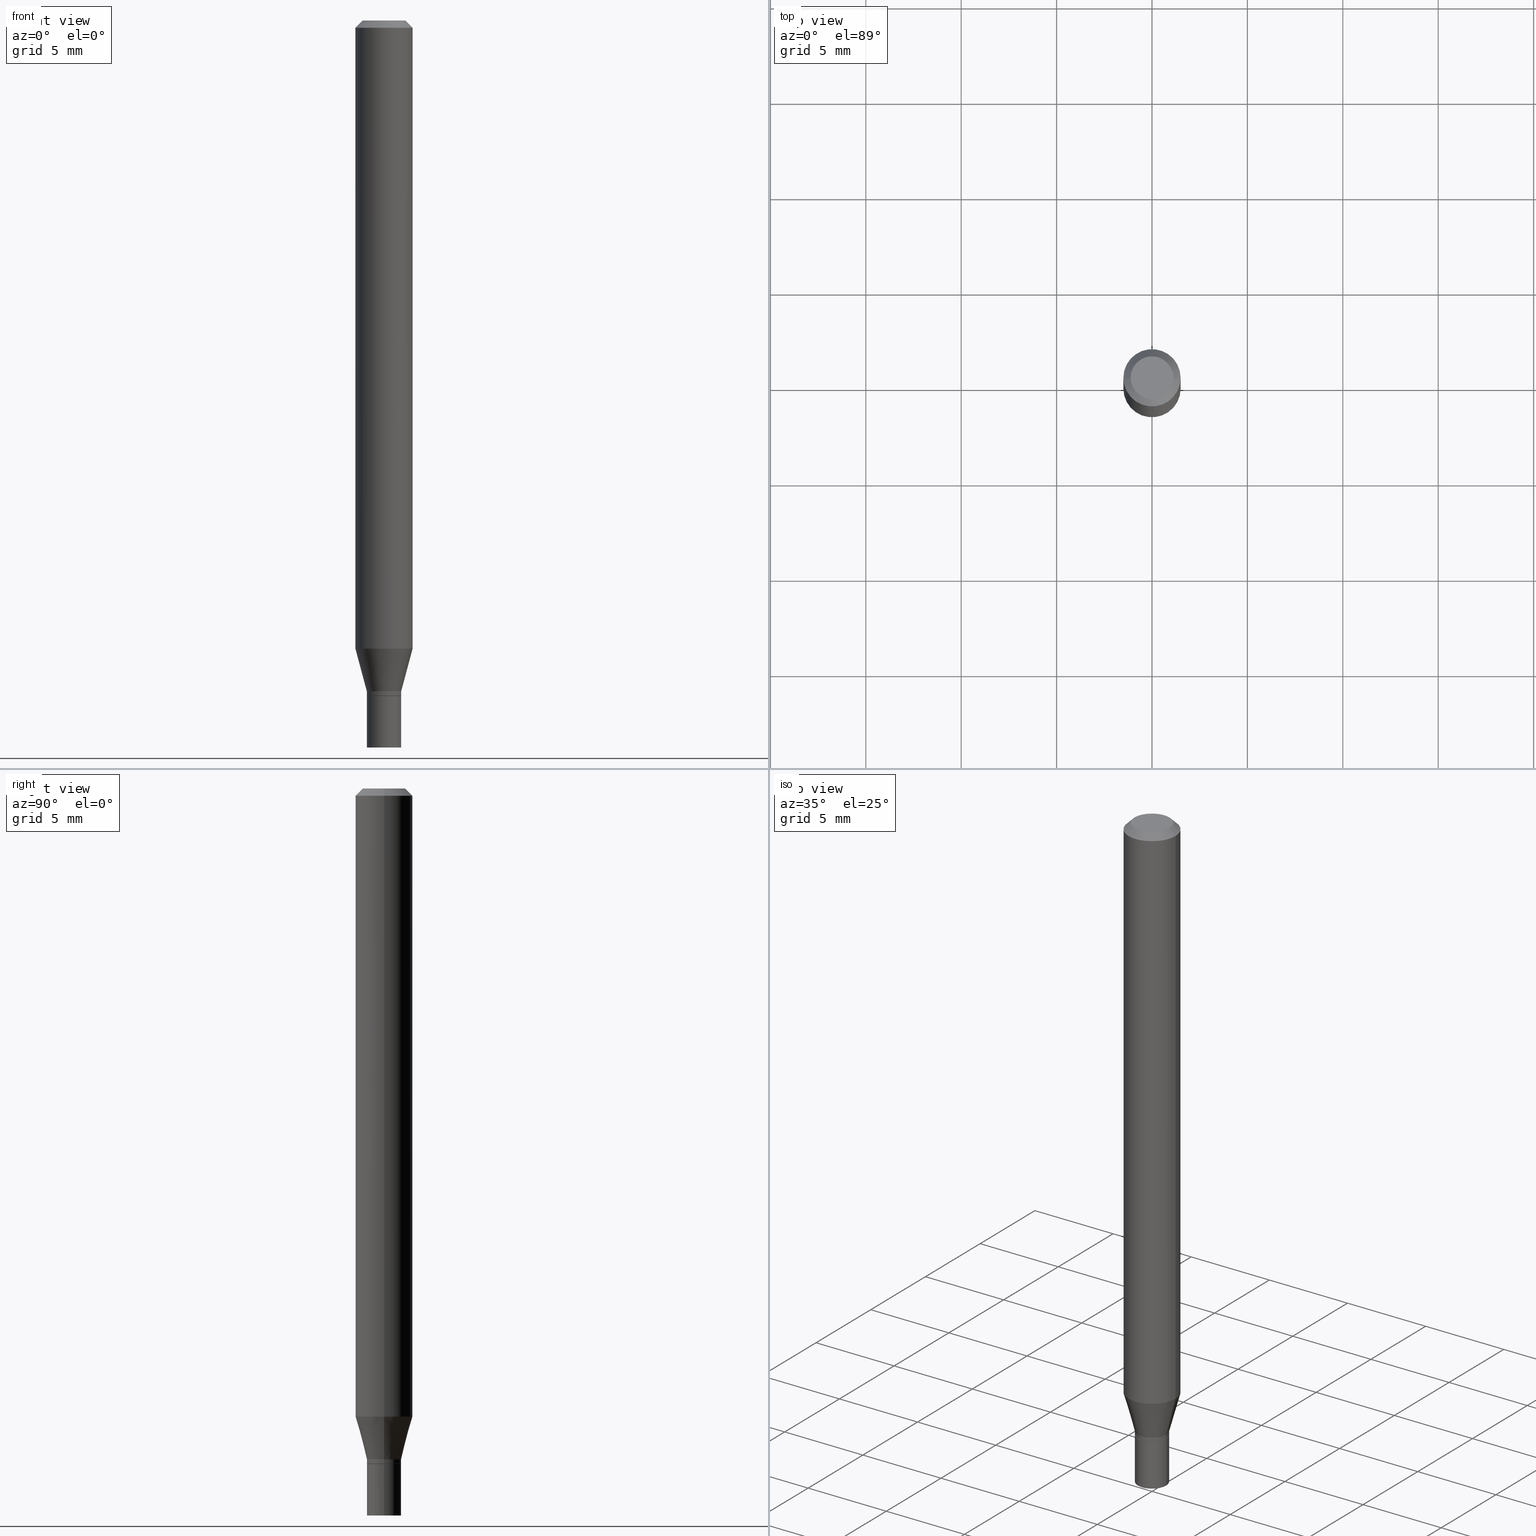
[diagram: canonical four-view strip — front | top / right | iso, engineering-drawing reading convention]
A machine part, canonical four-view strip (front | top / right | iso — engineering-drawing reading convention). The complete STEP part file that produces these views, byte-faithful:
ISO-10303-21;
HEADER;
FILE_DESCRIPTION (( 'STEP AP203' ),
    '1' );
FILE_NAME ('09288.STEP',
    '2024-03-14T18:21:38',
    ( '' ),
    ( '' ),
    'SwSTEP 2.0',
    'SolidWorks 2023',
    '' );
FILE_SCHEMA (( 'CONFIG_CONTROL_DESIGN' ));
ENDSEC;

DATA;
#1 = APPLICATION_PROTOCOL_DEFINITION ( 'international standard', 'config_control_design', 1994, #103 ) ;
#2 = ORIENTED_EDGE ( 'NONE', *, *, #234, .T. ) ;
#3 = DIRECTION ( 'NONE',  ( 1.000000000000000000, -6.982962677686269866E-15, 0.000000000000000000 ) ) ;
#4 = ORIENTED_EDGE ( 'NONE', *, *, #176, .T. ) ;
#5 = PRODUCT_DEFINITION_FORMATION_WITH_SPECIFIED_SOURCE ( 'ANY', '', #326, .NOT_KNOWN. ) ;
#6 = CARTESIAN_POINT ( 'NONE',  ( 3.408249875180225636E-29, -4.866077541945693107E-15, -1.393700000000000161 ) ) ;
#7 = ORIENTED_EDGE ( 'NONE', *, *, #379, .F. ) ;
#8 = DIRECTION ( 'NONE',  ( 0.2588190451025205729, 1.565188264969628081E-15, 0.9659258262890684232 ) ) ;
#9 = DATE_AND_TIME ( #409, #431 ) ;
#10 = PRODUCT_DEFINITION_SHAPE ( 'NONE', 'NONE',  #314 ) ;
#11 = PRODUCT_RELATED_PRODUCT_CATEGORY ( 'detail', '', ( #326 ) ) ;
#12 = CARTESIAN_POINT ( 'NONE',  ( 3.407027140777133395E-29, -4.864331801276271604E-15, -1.393200000000000216 ) ) ;
#13 = AXIS2_PLACEMENT_3D ( 'NONE', #46, #370, #89 ) ;
#14 = EDGE_CURVE ( 'NONE', #34, #426, #174, .T. ) ;
#15 = DIRECTION ( 'NONE',  ( -2.445468806185136597E-29, 3.491481338843145583E-15, 1.000000000000000000 ) ) ;
#16 = AXIS2_PLACEMENT_3D ( 'NONE', #307, #406, #268 ) ;
#17 = CARTESIAN_POINT ( 'NONE',  ( 3.408249875180224515E-29, -4.866077541945691530E-15, -1.393699999999999939 ) ) ;
#18 = DIRECTION ( 'NONE',  ( 1.000000000000000000, 0.000000000000000000, 0.000000000000000000 ) ) ;
#19 = CYLINDRICAL_SURFACE ( 'NONE', #212, 0.03544999999999964846 ) ;
#20 = CARTESIAN_POINT ( 'NONE',  ( -0.04404999999999999888, 3.337856159934036604E-16, 1.187331483132455906E-16 ) ) ;
#21 = APPROVAL_STATUS ( 'not_yet_approved' ) ;
#22 = FACE_OUTER_BOUND ( 'NONE', #73, .T. ) ;
#23 = ORIENTED_EDGE ( 'NONE', *, *, #382, .T. ) ;
#24 = CALENDAR_DATE ( 2024, 14, 3 ) ;
#25 = DIRECTION ( 'NONE',  ( 1.000000000000000000, -6.982962677686267499E-15, 0.000000000000000000 ) ) ;
#26 = AXIS2_PLACEMENT_3D ( 'NONE', #457, #49, #337 ) ;
#27 = DIRECTION ( 'NONE',  ( -1.000000000000000000, 6.982962677686265922E-15, -4.876176775795935793E-29 ) ) ;
#28 = ORIENTED_EDGE ( 'NONE', *, *, #45, .F. ) ;
#29 = CARTESIAN_POINT ( 'NONE',  ( 3.169140741301243022E-29, -4.524693069253216153E-15, -1.295923600941373044 ) ) ;
#30 = ORGANIZATION ( 'UNSPECIFIED', 'UNSPECIFIED', '' ) ;
#31 = EDGE_LOOP ( 'NONE', ( #354, #280, #148, #368 ) ) ;
#32 = EDGE_CURVE ( 'NONE', #63, #463, #52, .T. ) ;
#33 = EDGE_CURVE ( 'NONE', #204, #63, #454, .T. ) ;
#34 = VERTEX_POINT ( 'NONE', #20 ) ;
#35 = VERTEX_POINT ( 'NONE', #301 ) ;
#36 = EDGE_LOOP ( 'NONE', ( #235, #244, #397, #418 ) ) ;
#37 = CC_DESIGN_PERSON_AND_ORGANIZATION_ASSIGNMENT ( #214, #336, ( #314 ) ) ;
#38 = CARTESIAN_POINT ( 'NONE',  ( -0.03544999999999964846, -4.580322773131960554E-15, -1.384000000000000119 ) ) ;
#39 = EDGE_LOOP ( 'NONE', ( #246, #4, #323, #77 ) ) ;
#40 = CLOSED_SHELL ( 'NONE', ( #67, #389, #97, #157, #221, #424, #147, #149, #356, #64, #405, #359 ) ) ;
#41 = VECTOR ( 'NONE', #283, 39.37007874015748143 ) ;
#42 = DIRECTION ( 'NONE',  ( -0.2588190451025205729, 5.211531920934545520E-15, 0.9659258262890684232 ) ) ;
#43 = VERTEX_POINT ( 'NONE', #125 ) ;
#44 = PERSON_AND_ORGANIZATION ( #440, #30 ) ;
#45 = EDGE_CURVE ( 'NONE', #119, #43, #259, .T. ) ;
#46 = CARTESIAN_POINT ( 'NONE',  ( 3.668203209277704895E-29, -5.237222008264718177E-15, -1.500000000000000222 ) ) ;
#47 = PERSON_AND_ORGANIZATION ( #440, #30 ) ;
#48 = EDGE_CURVE ( 'NONE', #100, #119, #419, .T. ) ;
#49 = DIRECTION ( 'NONE',  ( -2.445468806185136597E-29, 3.491481338843145583E-15, 1.000000000000000000 ) ) ;
#50 = DIRECTION ( 'NONE',  ( 1.000000000000000000, -6.982962677686254089E-15, 0.000000000000000000 ) ) ;
#51 = COORDINATED_UNIVERSAL_TIME_OFFSET ( 5, 0, .BEHIND. ) ;
#52 = CIRCLE ( 'NONE', #343, 0.03545000000000000234 ) ;
#53 = APPROVAL_PERSON_ORGANIZATION ( #265, #225, #222 ) ;
#54 = PLANE ( 'NONE',  #236 ) ;
#55 = CARTESIAN_POINT ( 'NONE',  ( -0.03495000000000000190, -4.615093628623427420E-15, -1.393699999999999939 ) ) ;
#56 = CARTESIAN_POINT ( 'NONE',  ( 0.000000000000000000, 0.000000000000000000, 0.000000000000000000 ) ) ;
#57 = EDGE_CURVE ( 'NONE', #43, #435, #452, .T. ) ;
#58 = COORDINATED_UNIVERSAL_TIME_OFFSET ( 5, 0, .BEHIND. ) ;
#59 = CARTESIAN_POINT ( 'NONE',  ( 3.668203209277705088E-31, -5.237222008264718399E-17, -0.01499999999999999944 ) ) ;
#60 = ORIENTED_EDGE ( 'NONE', *, *, #441, .T. ) ;
#61 = CARTESIAN_POINT ( 'NONE',  ( 3.384528827760229323E-29, -4.832210172958913572E-15, -1.384000000000000119 ) ) ;
#62 = VECTOR ( 'NONE', #109, 39.37007874015748143 ) ;
#63 = VERTEX_POINT ( 'NONE', #216 ) ;
#64 = ADVANCED_FACE ( 'NONE', ( #22 ), #54, .F. ) ;
#65 = FACE_OUTER_BOUND ( 'NONE', #348, .T. ) ;
#66 = EDGE_CURVE ( 'NONE', #113, #386, #86, .T. ) ;
#67 = ADVANCED_FACE ( 'NONE', ( #399 ), #19, .T. ) ;
#68 = AXIS2_PLACEMENT_3D ( 'NONE', #309, #199, #229 ) ;
#69 = EDGE_LOOP ( 'NONE', ( #276, #357, #251, #138 ) ) ;
#70 = AXIS2_PLACEMENT_3D ( 'NONE', #243, #245, #209 ) ;
#71 = EDGE_CURVE ( 'NONE', #242, #204, #277, .T. ) ;
#72 = PLANE ( 'NONE',  #70 ) ;
#73 = EDGE_LOOP ( 'NONE', ( #107, #267 ) ) ;
#74 = CARTESIAN_POINT ( 'NONE',  ( 3.407027140777133395E-29, -4.864331801276271604E-15, -1.393200000000000216 ) ) ;
#75 = ORIENTED_EDGE ( 'NONE', *, *, #434, .F. ) ;
#76 = CARTESIAN_POINT ( 'NONE',  ( -0.03545000000000000234, 2.518873998269555325E-16, -1.743762489495364089E-30 ) ) ;
#77 = ORIENTED_EDGE ( 'NONE', *, *, #396, .F. ) ;
#78 = LENGTH_MEASURE_WITH_UNIT ( LENGTH_MEASURE( 0.02539999999999999897 ), #87 );
#79 = AXIS2_PLACEMENT_3D ( 'NONE', #328, #153, #407 ) ;
#80 = DATE_TIME_ROLE ( 'classification_date' ) ;
#81 = CARTESIAN_POINT ( 'NONE',  ( 0.03495000000000000190, -5.110132087530827195E-15, -1.393699999999999939 ) ) ;
#82 = DIRECTION ( 'NONE',  ( -2.445468806185136597E-29, 3.491481338843145583E-15, 1.000000000000000000 ) ) ;
#83 = CARTESIAN_POINT ( 'NONE',  ( 0.000000000000000000, 0.000000000000000000, 0.000000000000000000 ) ) ;
#84 = CARTESIAN_POINT ( 'NONE',  ( 3.408249875180224515E-29, -4.866077541945691530E-15, -1.393699999999999939 ) ) ;
#85 = DIRECTION ( 'NONE',  ( -2.445468806185136597E-29, 3.491481338843145583E-15, 1.000000000000000000 ) ) ;
#86 = CIRCLE ( 'NONE', #231, 0.03544999999999964846 ) ;
#87 =( LENGTH_UNIT ( ) NAMED_UNIT ( * ) SI_UNIT ( $, .METRE. ) );
#88 = CARTESIAN_POINT ( 'NONE',  ( 3.384528827760229323E-29, -4.832210172958913572E-15, -1.384000000000000119 ) ) ;
#89 = DIRECTION ( 'NONE',  ( 1.000000000000000000, -6.982962677686254089E-15, 0.000000000000000000 ) ) ;
#90 = CARTESIAN_POINT ( 'NONE',  ( 0.03544999999999964846, -5.079756199882889088E-15, -1.384000000000000119 ) ) ;
#91 = CYLINDRICAL_SURFACE ( 'NONE', #26, 0.03544999999999964846 ) ;
#92 = CARTESIAN_POINT ( 'NONE',  ( 3.408249875180224515E-29, -4.866077541945691530E-15, -1.393699999999999939 ) ) ;
#93 = DIRECTION ( 'NONE',  ( -1.000000000000000000, 6.982962677686266711E-15, 0.000000000000000000 ) ) ;
#94 = ORIENTED_EDGE ( 'NONE', *, *, #32, .T. ) ;
#95 = CONICAL_SURFACE ( 'NONE', #79, 0.05904999999999999832, 0.7853981633974445042 ) ;
#96 = VECTOR ( 'NONE', #189, 39.37007874015748143 ) ;
#97 = ADVANCED_FACE ( 'NONE', ( #160 ), #95, .T. ) ;
#98 = ORIENTED_EDGE ( 'NONE', *, *, #48, .T. ) ;
#99 = CARTESIAN_POINT ( 'NONE',  ( 0.03495000000000000190, -5.110132087530827195E-15, -1.393699999999999939 ) ) ;
#100 = VERTEX_POINT ( 'NONE', #293 ) ;
#101 = ORIENTED_EDGE ( 'NONE', *, *, #45, .T. ) ;
#102 =( NAMED_UNIT ( * ) SI_UNIT ( $, .STERADIAN. ) SOLID_ANGLE_UNIT ( ) );
#103 = APPLICATION_CONTEXT ( 'configuration controlled 3d designs of mechanical parts and assemblies' ) ;
#104 = EDGE_LOOP ( 'NONE', ( #420, #458 ) ) ;
#105 = DIRECTION ( 'NONE',  ( -2.445468806185136597E-29, 3.491481338843145583E-15, 1.000000000000000000 ) ) ;
#106 = VECTOR ( 'NONE', #168, 39.37007874015748143 ) ;
#107 = ORIENTED_EDGE ( 'NONE', *, *, #415, .F. ) ;
#108 = AXIS2_PLACEMENT_3D ( 'NONE', #202, #281, #349 ) ;
#109 = DIRECTION ( 'NONE',  ( -2.445468806185136877E-29, 3.491481338843145188E-15, 1.000000000000000000 ) ) ;
#110 = DIMENSIONAL_EXPONENTS ( 1.000000000000000000, 0.000000000000000000, 0.000000000000000000, 0.000000000000000000, 0.000000000000000000, 0.000000000000000000, 0.000000000000000000 ) ;
#111 = VERTEX_POINT ( 'NONE', #151 ) ;
#112 = DIRECTION ( 'NONE',  ( 1.000000000000000000, -6.982962677686254089E-15, 0.000000000000000000 ) ) ;
#113 = VERTEX_POINT ( 'NONE', #227 ) ;
#114 = EDGE_CURVE ( 'NONE', #390, #183, #139, .T. ) ;
#115 = DIRECTION ( 'NONE',  ( -2.445468806185136597E-29, 3.491481338843145583E-15, 1.000000000000000000 ) ) ;
#116 = VECTOR ( 'NONE', #329, 39.37007874015748143 ) ;
#117 = CIRCLE ( 'NONE', #16, 0.05904999999999999832 ) ;
#118 = DIRECTION ( 'NONE',  ( -2.445468806185136597E-29, 3.491481338843145583E-15, 1.000000000000000000 ) ) ;
#119 = VERTEX_POINT ( 'NONE', #403 ) ;
#120 = PERSON_AND_ORGANIZATION_ROLE ( 'classification_officer' ) ;
#121 = CARTESIAN_POINT ( 'NONE',  ( -0.03495000000000000190, -4.617742855797537044E-15, -1.393699999999999939 ) ) ;
#122 = DIRECTION ( 'NONE',  ( -2.445468806185136597E-29, 3.491481338843145583E-15, 1.000000000000000000 ) ) ;
#123 = DATE_TIME_ROLE ( 'creation_date' ) ;
#124 = ADVANCED_FACE ( 'NONE', ( #128 ), #297, .T. ) ;
#125 = CARTESIAN_POINT ( 'NONE',  ( 0.05904999999999999832, -4.937037015370589496E-15, -1.295923600941373044 ) ) ;
#126 = VECTOR ( 'NONE', #414, 39.37007874015748143 ) ;
#127 = DIRECTION ( 'NONE',  ( 1.000000000000000000, -6.982962677686269866E-15, 0.000000000000000000 ) ) ;
#128 = FACE_OUTER_BOUND ( 'NONE', #69, .T. ) ;
#129 = PERSON_AND_ORGANIZATION ( #440, #30 ) ;
#130 = FACE_OUTER_BOUND ( 'NONE', #394, .T. ) ;
#131 = FACE_OUTER_BOUND ( 'NONE', #315, .T. ) ;
#132 = ORIENTED_EDGE ( 'NONE', *, *, #285, .F. ) ;
#133 = AXIS2_PLACEMENT_3D ( 'NONE', #439, #118, #191 ) ;
#134 = LINE ( 'NONE', #381, #428 ) ;
#135 = AXIS2_PLACEMENT_3D ( 'NONE', #74, #361, #3 ) ;
#136 = MANIFOLD_SOLID_BREP ( 'Body-Move/Copy2[1]', #181 ) ;
#137 = CC_DESIGN_PERSON_AND_ORGANIZATION_ASSIGNMENT ( #44, #120, ( #312 ) ) ;
#138 = ORIENTED_EDGE ( 'NONE', *, *, #33, .F. ) ;
#139 = CIRCLE ( 'NONE', #355, 0.03495000000000000190 ) ;
#140 = AXIS2_PLACEMENT_3D ( 'NONE', #83, #447, #18 ) ;
#141 = DIRECTION ( 'NONE',  ( -2.445468806185136877E-29, 3.491481338843145188E-15, 1.000000000000000000 ) ) ;
#142 = EDGE_LOOP ( 'NONE', ( #321, #179, #230, #400 ) ) ;
#143 = LINE ( 'NONE', #38, #429 ) ;
#144 = EDGE_LOOP ( 'NONE', ( #23, #2, #442, #28 ) ) ;
#145 = FACE_OUTER_BOUND ( 'NONE', #144, .T. ) ;
#146 = DIRECTION ( 'NONE',  ( -2.445468806185136597E-29, 3.491481338843145583E-15, 1.000000000000000000 ) ) ;
#147 = ADVANCED_FACE ( 'NONE', ( #247 ), #401, .T. ) ;
#148 = ORIENTED_EDGE ( 'NONE', *, *, #285, .T. ) ;
#149 = ADVANCED_FACE ( 'NONE', ( #333 ), #373, .T. ) ;
#150 = CARTESIAN_POINT ( 'NONE',  ( -0.05904999999999999832, 3.599717260347268549E-16, -0.01499999999999999944 ) ) ;
#151 = CARTESIAN_POINT ( 'NONE',  ( -0.05904999999999999832, -1.868957159201592321E-15, -0.01499999999999999944 ) ) ;
#152 = EDGE_CURVE ( 'NONE', #386, #119, #316, .T. ) ;
#153 = DIRECTION ( 'NONE',  ( 2.445468806185136597E-29, -3.491481338843145583E-15, -1.000000000000000000 ) ) ;
#154 = AXIS2_PLACEMENT_3D ( 'NONE', #59, #410, #254 ) ;
#155 = DIRECTION ( 'NONE',  ( 1.000000000000000000, -6.982962677686269866E-15, 0.000000000000000000 ) ) ;
#156 = DIRECTION ( 'NONE',  ( 1.000000000000000000, -6.982962677686273021E-15, 0.000000000000000000 ) ) ;
#157 = ADVANCED_FACE ( 'NONE', ( #65 ), #465, .T. ) ;
#158 = COORDINATED_UNIVERSAL_TIME_OFFSET ( 5, 0, .BEHIND. ) ;
#159 = PLANE ( 'NONE',  #182 ) ;
#160 = FACE_OUTER_BOUND ( 'NONE', #325, .T. ) ;
#161 = ORIENTED_EDGE ( 'NONE', *, *, #114, .T. ) ;
#162 = PERSON_AND_ORGANIZATION ( #440, #30 ) ;
#163 = DIRECTION ( 'NONE',  ( 1.000000000000000000, -6.982962677686265922E-15, 4.876176775795935793E-29 ) ) ;
#164 = PERSON_AND_ORGANIZATION ( #440, #30 ) ;
#165 = AXIS2_PLACEMENT_3D ( 'NONE', #29, #272, #421 ) ;
#166 = DIRECTION ( 'NONE',  ( 2.438088387897960049E-29, -3.491481338843145188E-15, -1.000000000000000000 ) ) ;
#167 = DIRECTION ( 'NONE',  ( -2.445468806185136877E-29, 3.491481338843145188E-15, 1.000000000000000000 ) ) ;
#168 = DIRECTION ( 'NONE',  ( -2.445468806185136877E-29, 3.491481338843145188E-15, 1.000000000000000000 ) ) ;
#169 = AXIS2_PLACEMENT_3D ( 'NONE', #446, #255, #93 ) ;
#170 = EDGE_CURVE ( 'NONE', #43, #35, #134, .T. ) ;
#171 = ORIENTED_EDGE ( 'NONE', *, *, #456, .F. ) ;
#172 = EDGE_LOOP ( 'NONE', ( #239, #282 ) ) ;
#173 = EDGE_CURVE ( 'NONE', #426, #34, #241, .T. ) ;
#174 = CIRCLE ( 'NONE', #462, 0.04404999999999999888 ) ;
#175 = AXIS2_PLACEMENT_3D ( 'NONE', #61, #200, #155 ) ;
#176 = EDGE_CURVE ( 'NONE', #435, #43, #464, .T. ) ;
#177 = EDGE_LOOP ( 'NONE', ( #384, #466, #353, #75 ) ) ;
#178 = DIRECTION ( 'NONE',  ( -2.445468806185136597E-29, 3.491481338843145583E-15, 1.000000000000000000 ) ) ;
#179 = ORIENTED_EDGE ( 'NONE', *, *, #367, .T. ) ;
#180 = DIRECTION ( 'NONE',  ( -1.000000000000000000, 6.982962677686265922E-15, -4.876176775795935793E-29 ) ) ;
#181 = CLOSED_SHELL ( 'NONE', ( #124, #190, #345, #278 ) ) ;
#182 = AXIS2_PLACEMENT_3D ( 'NONE', #445, #166, #27 ) ;
#183 = VERTEX_POINT ( 'NONE', #99 ) ;
#184 = PLANE ( 'NONE',  #317 ) ;
#185 = ORIENTED_EDGE ( 'NONE', *, *, #318, .T. ) ;
#186 = DATE_AND_TIME ( #295, #412 ) ;
#187 = DIRECTION ( 'NONE',  ( 1.000000000000000000, -6.982962677686269866E-15, 0.000000000000000000 ) ) ;
#188 = APPROVAL_STATUS ( 'not_yet_approved' ) ;
#189 = DIRECTION ( 'NONE',  ( 0.7071067811865656694, -2.468850131082446387E-15, 0.7071067811865294761 ) ) ;
#190 = ADVANCED_FACE ( 'NONE', ( #240 ), #72, .F. ) ;
#191 = DIRECTION ( 'NONE',  ( 1.000000000000000000, -6.982962677686266711E-15, 4.876176775795936353E-29 ) ) ;
#192 = APPROVAL_STATUS ( 'not_yet_approved' ) ;
#193 = VECTOR ( 'NONE', #342, 39.37007874015748143 ) ;
#194 = CARTESIAN_POINT ( 'NONE',  ( 0.05904999999999999832, -4.574846268510561447E-16, -0.01499999999999999944 ) ) ;
#195 = DIRECTION ( 'NONE',  ( -2.445468806185136597E-29, 3.491481338843145583E-15, 1.000000000000000000 ) ) ;
#196 = DIRECTION ( 'NONE',  ( 1.000000000000000000, -6.982962677686266711E-15, 4.876176775795935793E-29 ) ) ;
#197 = DIRECTION ( 'NONE',  ( 1.000000000000000000, -6.982962677686267499E-15, 0.000000000000000000 ) ) ;
#198 = CARTESIAN_POINT ( 'NONE',  ( 3.408249875180224515E-29, -4.866077541945691530E-15, -1.393699999999999939 ) ) ;
#199 = DIRECTION ( 'NONE',  ( -2.445468806185136597E-29, 3.491481338843145583E-15, 1.000000000000000000 ) ) ;
#200 = DIRECTION ( 'NONE',  ( -2.445468806185136597E-29, 3.491481338843145583E-15, 1.000000000000000000 ) ) ;
#201 = ORIENTED_EDGE ( 'NONE', *, *, #379, .T. ) ;
#202 = CARTESIAN_POINT ( 'NONE',  ( -2.903582104602009454E-45, 4.145545716378002760E-31, 1.187331483132478339E-16 ) ) ;
#203 = AXIS2_PLACEMENT_3D ( 'NONE', #398, #430, #286 ) ;
#204 = VERTEX_POINT ( 'NONE', #322 ) ;
#205 = CC_DESIGN_DATE_AND_TIME_ASSIGNMENT ( #9, #80, ( #312 ) ) ;
#206 = AXIS2_PLACEMENT_3D ( 'NONE', #219, #250, #338 ) ;
#207 = VECTOR ( 'NONE', #444, 39.37007874015748143 ) ;
#208 = CYLINDRICAL_SURFACE ( 'NONE', #374, 0.03545000000000000234 ) ;
#209 = DIRECTION ( 'NONE',  ( 1.000000000000000000, -6.982962677686265922E-15, 4.876176775795935793E-29 ) ) ;
#210 = EDGE_CURVE ( 'NONE', #386, #113, #249, .T. ) ;
#211 = DIRECTION ( 'NONE',  ( 2.438088387897960049E-29, -3.491481338843145188E-15, -1.000000000000000000 ) ) ;
#212 = AXIS2_PLACEMENT_3D ( 'NONE', #341, #195, #411 ) ;
#213 = CONICAL_SURFACE ( 'NONE', #175, 0.03544999999999964846, 0.2617993877991492413 ) ;
#214 = PERSON_AND_ORGANIZATION ( #440, #30 ) ;
#215 = CARTESIAN_POINT ( 'NONE',  ( 3.169140741301243022E-29, -4.524693069253216153E-15, -1.295923600941373044 ) ) ;
#216 = CARTESIAN_POINT ( 'NONE',  ( 0.03545000000000000234, -5.113623568869670202E-15, -1.393700000000000161 ) ) ;
#217 = COORDINATED_UNIVERSAL_TIME_OFFSET ( 5, 0, .BEHIND. ) ;
#218 = LINE ( 'NONE', #194, #207 ) ;
#219 = CARTESIAN_POINT ( 'NONE',  ( 3.384528827760229323E-29, -4.832210172958913572E-15, -1.384000000000000119 ) ) ;
#220 = CARTESIAN_POINT ( 'NONE',  ( -2.903582104602009454E-45, 4.145545716378002760E-31, 1.187331483132478339E-16 ) ) ;
#221 = ADVANCED_FACE ( 'NONE', ( #145 ), #388, .T. ) ;
#222 = APPROVAL_ROLE ( '' ) ;
#223 = CIRCLE ( 'NONE', #271, 0.03495000000000000190 ) ;
#224 = CARTESIAN_POINT ( 'NONE',  ( -0.05904999999999999832, 4.195754854663391478E-16, -2.904631170795521892E-30 ) ) ;
#225 = APPROVAL ( #21, 'UNSPECIFIED' ) ;
#226 = APPROVAL_PERSON_ORGANIZATION ( #47, #269, #252 ) ;
#227 = CARTESIAN_POINT ( 'NONE',  ( -0.03544999999999964846, -4.612444401449318586E-15, -1.393200000000000216 ) ) ;
#228 = CARTESIAN_POINT ( 'NONE',  ( -0.03544999999999964846, 2.518873998269530180E-16, -1.743762489495346923E-30 ) ) ;
#229 = DIRECTION ( 'NONE',  ( 1.000000000000000000, -6.982962677686266711E-15, 4.876176775795936353E-29 ) ) ;
#230 = ORIENTED_EDGE ( 'NONE', *, *, #382, .F. ) ;
#231 = AXIS2_PLACEMENT_3D ( 'NONE', #12, #85, #187 ) ;
#232 = CIRCLE ( 'NONE', #393, 0.03545000000000000234 ) ;
#233 = CALENDAR_DATE ( 2024, 14, 3 ) ;
#234 = EDGE_CURVE ( 'NONE', #100, #435, #143, .T. ) ;
#235 = ORIENTED_EDGE ( 'NONE', *, *, #367, .F. ) ;
#236 = AXIS2_PLACEMENT_3D ( 'NONE', #17, #332, #163 ) ;
#237 = CC_DESIGN_APPROVAL ( #363, ( #5 ) ) ;
#238 = ORIENTED_EDGE ( 'NONE', *, *, #234, .F. ) ;
#239 = ORIENTED_EDGE ( 'NONE', *, *, #14, .T. ) ;
#240 = FACE_OUTER_BOUND ( 'NONE', #104, .T. ) ;
#241 = CIRCLE ( 'NONE', #108, 0.04404999999999999888 ) ;
#242 = VERTEX_POINT ( 'NONE', #395 ) ;
#243 = CARTESIAN_POINT ( 'NONE',  ( 3.576687321579069994E-29, -5.368277968210015545E-15, -1.500000000000000222 ) ) ;
#244 = ORIENTED_EDGE ( 'NONE', *, *, #66, .T. ) ;
#245 = DIRECTION ( 'NONE',  ( -2.438088387897960049E-29, 3.491481338843145188E-15, 1.000000000000000000 ) ) ;
#246 = ORIENTED_EDGE ( 'NONE', *, *, #387, .F. ) ;
#247 = FACE_OUTER_BOUND ( 'NONE', #39, .T. ) ;
#248 = CC_DESIGN_PERSON_AND_ORGANIZATION_ASSIGNMENT ( #298, #256, ( #5 ) ) ;
#249 = CIRCLE ( 'NONE', #135, 0.03544999999999964846 ) ;
#250 = DIRECTION ( 'NONE',  ( -2.445468806185136597E-29, 3.491481338843145583E-15, 1.000000000000000000 ) ) ;
#251 = ORIENTED_EDGE ( 'NONE', *, *, #32, .F. ) ;
#252 = APPROVAL_ROLE ( '' ) ;
#253 = CARTESIAN_POINT ( 'NONE',  ( -0.03545000000000000234, -4.799762375278250257E-15, -1.393700000000000161 ) ) ;
#254 = DIRECTION ( 'NONE',  ( 1.000000000000000000, -6.982962677686266711E-15, 0.000000000000000000 ) ) ;
#255 = DIRECTION ( 'NONE',  ( 2.445468806185136597E-29, -3.491481338843145583E-15, -1.000000000000000000 ) ) ;
#256 = PERSON_AND_ORGANIZATION_ROLE ( 'design_supplier' ) ;
#257 = LINE ( 'NONE', #228, #366 ) ;
#258 = DIRECTION ( 'NONE',  ( -2.445468806185136597E-29, 3.491481338843145583E-15, 1.000000000000000000 ) ) ;
#259 = LINE ( 'NONE', #90, #365 ) ;
#260 = APPLICATION_PROTOCOL_DEFINITION ( 'international standard', 'config_control_design', 1994, #362 ) ;
#261 = LOCAL_TIME ( 14, 21, 38.00000000000000000, #158 ) ;
#262 = EDGE_CURVE ( 'NONE', #242, #463, #392, .T. ) ;
#263 = LINE ( 'NONE', #224, #126 ) ;
#264 = CARTESIAN_POINT ( 'NONE',  ( 0.03544999999999964846, -2.475460269239757142E-16, 1.728604667019642274E-30 ) ) ;
#265 = PERSON_AND_ORGANIZATION ( #440, #30 ) ;
#266 = DIRECTION ( 'NONE',  ( 1.000000000000000000, -6.982962677686267499E-15, 0.000000000000000000 ) ) ;
#267 = ORIENTED_EDGE ( 'NONE', *, *, #114, .F. ) ;
#268 = DIRECTION ( 'NONE',  ( 1.000000000000000000, -6.982962677686266711E-15, 0.000000000000000000 ) ) ;
#269 = APPROVAL ( #188, 'UNSPECIFIED' ) ;
#270 = APPROVAL_DATE_TIME ( #273, #269 ) ;
#271 = AXIS2_PLACEMENT_3D ( 'NONE', #84, #380, #340 ) ;
#272 = DIRECTION ( 'NONE',  ( -2.445468806185136597E-29, 3.491481338843145583E-15, 1.000000000000000000 ) ) ;
#273 = DATE_AND_TIME ( #233, #308 ) ;
#274 = EDGE_LOOP ( 'NONE', ( #360, #461, #432, #351 ) ) ;
#275 = CC_DESIGN_PERSON_AND_ORGANIZATION_ASSIGNMENT ( #129, #416, ( #5 ) ) ;
#276 = ORIENTED_EDGE ( 'NONE', *, *, #320, .T. ) ;
#277 = CIRCLE ( 'NONE', #13, 0.03545000000000000234 ) ;
#278 = ADVANCED_FACE ( 'NONE', ( #358 ), #184, .F. ) ;
#279 = AXIS2_PLACEMENT_3D ( 'NONE', #88, #378, #127 ) ;
#280 = ORIENTED_EDGE ( 'NONE', *, *, #14, .F. ) ;
#281 = DIRECTION ( 'NONE',  ( -2.445468806185136597E-29, 3.491481338843145583E-15, 1.000000000000000000 ) ) ;
#282 = ORIENTED_EDGE ( 'NONE', *, *, #173, .T. ) ;
#283 = DIRECTION ( 'NONE',  ( -0.7071067811865447972, 2.468850131082228267E-15, -0.7071067811865502373 ) ) ;
#284 = ORIENTED_EDGE ( 'NONE', *, *, #170, .F. ) ;
#285 = EDGE_CURVE ( 'NONE', #34, #111, #324, .T. ) ;
#286 = DIRECTION ( 'NONE',  ( 1.000000000000000000, -6.982962677686269866E-15, 0.000000000000000000 ) ) ;
#287 = CIRCLE ( 'NONE', #154, 0.05904999999999999832 ) ;
#288 =( CONVERSION_BASED_UNIT ( 'INCH', #78 ) LENGTH_UNIT ( ) NAMED_UNIT ( #110 ) );
#289 = CARTESIAN_POINT ( 'NONE',  ( 0.000000000000000000, 0.000000000000000000, 0.000000000000000000 ) ) ;
#290 = EDGE_LOOP ( 'NONE', ( #94, #185 ) ) ;
#291 = CARTESIAN_POINT ( 'NONE',  ( 3.408249875180224515E-29, -4.866077541945691530E-15, -1.393699999999999939 ) ) ;
#292 = MANIFOLD_SOLID_BREP ( 'Body-Move/Copy2[2]', #40 ) ;
#293 = CARTESIAN_POINT ( 'NONE',  ( -0.03544999999999964846, -4.342720178459418213E-15, -1.384000000000000119 ) ) ;
#294 = CIRCLE ( 'NONE', #279, 0.03544999999999964846 ) ;
#295 = CALENDAR_DATE ( 2024, 14, 3 ) ;
#296 = CARTESIAN_POINT ( 'NONE',  ( -0.05904999999999999832, -4.105117583786875872E-15, -1.295923600941373044 ) ) ;
#297 = CYLINDRICAL_SURFACE ( 'NONE', #334, 0.03545000000000000234 ) ;
#298 = PERSON_AND_ORGANIZATION ( #440, #30 ) ;
#299 = LINE ( 'NONE', #121, #193 ) ;
#300 = FACE_OUTER_BOUND ( 'NONE', #172, .T. ) ;
#301 = CARTESIAN_POINT ( 'NONE',  ( 0.05904999999999999832, -4.647161662000212105E-16, -0.01499999999999999944 ) ) ;
#302 = PERSON_AND_ORGANIZATION_ROLE ( 'design_owner' ) ;
#303 = CARTESIAN_POINT ( 'NONE',  ( 0.03544999999999964846, -5.111877828200247121E-15, -1.393200000000000216 ) ) ;
#304 = ORIENTED_EDGE ( 'NONE', *, *, #387, .T. ) ;
#305 = APPROVAL_ROLE ( '' ) ;
#306 = AXIS2_PLACEMENT_3D ( 'NONE', #92, #15, #266 ) ;
#307 = CARTESIAN_POINT ( 'NONE',  ( 3.668203209277705088E-31, -5.237222008264718399E-17, -0.01499999999999999944 ) ) ;
#308 = LOCAL_TIME ( 14, 21, 38.00000000000000000, #217 ) ;
#309 = CARTESIAN_POINT ( 'NONE',  ( 0.000000000000000000, 0.000000000000000000, 0.000000000000000000 ) ) ;
#310 = LINE ( 'NONE', #81, #96 ) ;
#311 = LOCAL_TIME ( 14, 21, 38.00000000000000000, #58 ) ;
#312 = SECURITY_CLASSIFICATION ( '', '', #404 ) ;
#313 = ORIENTED_EDGE ( 'NONE', *, *, #57, .T. ) ;
#314 = PRODUCT_DEFINITION ( 'UNKNOWN', '', #5, #331 ) ;
#315 = EDGE_LOOP ( 'NONE', ( #238, #98, #101, #449 ) ) ;
#316 = LINE ( 'NONE', #264, #106 ) ;
#317 = AXIS2_PLACEMENT_3D ( 'NONE', #327, #211, #180 ) ;
#318 = EDGE_CURVE ( 'NONE', #463, #63, #438, .T. ) ;
#319 = CC_DESIGN_PERSON_AND_ORGANIZATION_ASSIGNMENT ( #162, #302, ( #326 ) ) ;
#320 = EDGE_CURVE ( 'NONE', #204, #242, #232, .T. ) ;
#321 = ORIENTED_EDGE ( 'NONE', *, *, #210, .T. ) ;
#322 = CARTESIAN_POINT ( 'NONE',  ( 0.03545000000000000234, -5.484768035188696060E-15, -1.500000000000000222 ) ) ;
#323 = ORIENTED_EDGE ( 'NONE', *, *, #170, .T. ) ;
#324 = LINE ( 'NONE', #150, #41 ) ;
#325 = EDGE_LOOP ( 'NONE', ( #413, #60, #201, #132 ) ) ;
#326 = PRODUCT ( '09288', '09288', '', ( #402 ) ) ;
#327 = CARTESIAN_POINT ( 'NONE',  ( 2.475460269240121990E-16, 0.03544999999999513818, -1.393700000000000161 ) ) ;
#328 = CARTESIAN_POINT ( 'NONE',  ( 3.668203209277705088E-31, -5.237222008264718399E-17, -0.01499999999999999944 ) ) ;
#329 = DIRECTION ( 'NONE',  ( -2.445468806185136877E-29, 3.491481338843145188E-15, 1.000000000000000000 ) ) ;
#330 = COORDINATED_UNIVERSAL_TIME_OFFSET ( 5, 0, .BEHIND. ) ;
#331 = DESIGN_CONTEXT ( 'detailed design', #362, 'design' ) ;
#332 = DIRECTION ( 'NONE',  ( -2.438088387897960049E-29, 3.491481338843145188E-15, 1.000000000000000000 ) ) ;
#333 = FACE_OUTER_BOUND ( 'NONE', #31, .T. ) ;
#334 = AXIS2_PLACEMENT_3D ( 'NONE', #56, #115, #377 ) ;
#335 = CONICAL_SURFACE ( 'NONE', #306, 0.03495000000000000190, 0.7853981633974739252 ) ;
#336 = PERSON_AND_ORGANIZATION_ROLE ( 'creator' ) ;
#337 = DIRECTION ( 'NONE',  ( 1.000000000000000000, -6.982962677686267499E-15, 4.876176775795936353E-29 ) ) ;
#338 = DIRECTION ( 'NONE',  ( 1.000000000000000000, -6.982962677686269866E-15, 0.000000000000000000 ) ) ;
#339 = CARTESIAN_POINT ( 'NONE',  ( 0.03545000000000000234, -2.475460269239781793E-16, 1.728604667019659440E-30 ) ) ;
#340 = DIRECTION ( 'NONE',  ( 1.000000000000000000, -6.982962677686267499E-15, 0.000000000000000000 ) ) ;
#341 = CARTESIAN_POINT ( 'NONE',  ( 0.000000000000000000, 0.000000000000000000, 0.000000000000000000 ) ) ;
#342 = DIRECTION ( 'NONE',  ( -0.7071067811865656694, 7.493145998870420424E-15, 0.7071067811865294761 ) ) ;
#343 = AXIS2_PLACEMENT_3D ( 'NONE', #375, #82, #50 ) ;
#344 = AXIS2_PLACEMENT_3D ( 'NONE', #198, #417, #25 ) ;
#345 = ADVANCED_FACE ( 'NONE', ( #427 ), #208, .T. ) ;
#346 = CARTESIAN_POINT ( 'NONE',  ( 0.04404999999999999888, -3.798447818264458600E-16, 1.187331483132502252E-16 ) ) ;
#347 = CC_DESIGN_SECURITY_CLASSIFICATION ( #312, ( #5 ) ) ;
#348 = EDGE_LOOP ( 'NONE', ( #313, #304, #7, #284 ) ) ;
#349 = DIRECTION ( 'NONE',  ( 1.000000000000000000, -6.982962677686265922E-15, 4.888540261209747396E-29 ) ) ;
#350 = SHAPE_DEFINITION_REPRESENTATION ( #10, #371 ) ;
#351 = ORIENTED_EDGE ( 'NONE', *, *, #318, .F. ) ;
#352 = CC_DESIGN_APPROVAL ( #225, ( #314 ) ) ;
#353 = ORIENTED_EDGE ( 'NONE', *, *, #210, .F. ) ;
#354 = ORIENTED_EDGE ( 'NONE', *, *, #441, .F. ) ;
#355 = AXIS2_PLACEMENT_3D ( 'NONE', #291, #436, #197 ) ;
#356 = ADVANCED_FACE ( 'NONE', ( #300 ), #159, .F. ) ;
#357 = ORIENTED_EDGE ( 'NONE', *, *, #262, .T. ) ;
#358 = FACE_OUTER_BOUND ( 'NONE', #290, .T. ) ;
#359 = ADVANCED_FACE ( 'NONE', ( #448 ), #91, .T. ) ;
#360 = ORIENTED_EDGE ( 'NONE', *, *, #262, .F. ) ;
#361 = DIRECTION ( 'NONE',  ( -2.445468806185136597E-29, 3.491481338843145583E-15, 1.000000000000000000 ) ) ;
#362 = APPLICATION_CONTEXT ( 'configuration controlled 3d designs of mechanical parts and assemblies' ) ;
#363 = APPROVAL ( #192, 'UNSPECIFIED' ) ;
#364 = CARTESIAN_POINT ( 'NONE',  ( 3.668203209277704895E-29, -5.237222008264718177E-15, -1.500000000000000222 ) ) ;
#365 = VECTOR ( 'NONE', #8, 39.37007874015748143 ) ;
#366 = VECTOR ( 'NONE', #167, 39.37007874015748143 ) ;
#367 = EDGE_CURVE ( 'NONE', #113, #100, #257, .T. ) ;
#368 = ORIENTED_EDGE ( 'NONE', *, *, #396, .T. ) ;
#369 = APPROVAL_DATE_TIME ( #376, #225 ) ;
#370 = DIRECTION ( 'NONE',  ( -2.445468806185136597E-29, 3.491481338843145583E-15, 1.000000000000000000 ) ) ;
#371 = ADVANCED_BREP_SHAPE_REPRESENTATION ( '09288', ( #136, #292, #140 ), #459 ) ;
#372 = FACE_OUTER_BOUND ( 'NONE', #177, .T. ) ;
#373 = CONICAL_SURFACE ( 'NONE', #169, 0.05904999999999999832, 0.7853981633974445042 ) ;
#374 = AXIS2_PLACEMENT_3D ( 'NONE', #289, #178, #196 ) ;
#375 = CARTESIAN_POINT ( 'NONE',  ( 3.408249875180225636E-29, -4.866077541945693107E-15, -1.393700000000000161 ) ) ;
#376 = DATE_AND_TIME ( #24, #311 ) ;
#377 = DIRECTION ( 'NONE',  ( 1.000000000000000000, -6.982962677686266711E-15, 4.876176775795935793E-29 ) ) ;
#378 = DIRECTION ( 'NONE',  ( -2.445468806185136597E-29, 3.491481338843145583E-15, 1.000000000000000000 ) ) ;
#379 = EDGE_CURVE ( 'NONE', #35, #111, #287, .T. ) ;
#380 = DIRECTION ( 'NONE',  ( -2.445468806185136597E-29, 3.491481338843145583E-15, 1.000000000000000000 ) ) ;
#381 = CARTESIAN_POINT ( 'NONE',  ( 0.05904999999999999832, -4.123439461173740327E-16, 2.879382386107500220E-30 ) ) ;
#382 = EDGE_CURVE ( 'NONE', #119, #100, #294, .T. ) ;
#383 = CONICAL_SURFACE ( 'NONE', #344, 0.03495000000000000190, 0.7853981633974739252 ) ;
#384 = ORIENTED_EDGE ( 'NONE', *, *, #415, .T. ) ;
#385 = UNCERTAINTY_MEASURE_WITH_UNIT (LENGTH_MEASURE( 1.000000000000000082E-05 ), #288, 'distance_accuracy_value', 'NONE');
#386 = VERTEX_POINT ( 'NONE', #303 ) ;
#387 = EDGE_CURVE ( 'NONE', #435, #111, #263, .T. ) ;
#388 = CONICAL_SURFACE ( 'NONE', #203, 0.03544999999999964846, 0.2617993877991492413 ) ;
#389 = ADVANCED_FACE ( 'NONE', ( #372 ), #335, .T. ) ;
#390 = VERTEX_POINT ( 'NONE', #55 ) ;
#391 = ORIENTED_EDGE ( 'NONE', *, *, #434, .T. ) ;
#392 = LINE ( 'NONE', #76, #62 ) ;
#393 = AXIS2_PLACEMENT_3D ( 'NONE', #364, #146, #433 ) ;
#394 = EDGE_LOOP ( 'NONE', ( #171, #161, #391, #422 ) ) ;
#395 = CARTESIAN_POINT ( 'NONE',  ( -0.03545000000000000234, -4.799762375278250257E-15, -1.500000000000000222 ) ) ;
#396 = EDGE_CURVE ( 'NONE', #111, #35, #117, .T. ) ;
#397 = ORIENTED_EDGE ( 'NONE', *, *, #152, .T. ) ;
#398 = CARTESIAN_POINT ( 'NONE',  ( 3.384528827760229323E-29, -4.832210172958913572E-15, -1.384000000000000119 ) ) ;
#399 = FACE_OUTER_BOUND ( 'NONE', #142, .T. ) ;
#400 = ORIENTED_EDGE ( 'NONE', *, *, #152, .F. ) ;
#401 = CYLINDRICAL_SURFACE ( 'NONE', #133, 0.05904999999999999832 ) ;
#402 = MECHANICAL_CONTEXT ( 'NONE', #103, 'mechanical' ) ;
#403 = CARTESIAN_POINT ( 'NONE',  ( 0.03544999999999964846, -5.079756199882889088E-15, -1.384000000000000119 ) ) ;
#404 = SECURITY_CLASSIFICATION_LEVEL ( 'unclassified' ) ;
#405 = ADVANCED_FACE ( 'NONE', ( #130 ), #383, .T. ) ;
#406 = DIRECTION ( 'NONE',  ( -2.445468806185136597E-29, 3.491481338843145583E-15, 1.000000000000000000 ) ) ;
#407 = DIRECTION ( 'NONE',  ( -1.000000000000000000, 6.982962677686266711E-15, 0.000000000000000000 ) ) ;
#408 = DIRECTION ( 'NONE',  ( 1.000000000000000000, -6.982962677686265922E-15, 4.888540261209747396E-29 ) ) ;
#409 = CALENDAR_DATE ( 2024, 14, 3 ) ;
#410 = DIRECTION ( 'NONE',  ( -2.445468806185136597E-29, 3.491481338843145583E-15, 1.000000000000000000 ) ) ;
#411 = DIRECTION ( 'NONE',  ( 1.000000000000000000, -6.982962677686267499E-15, 4.876176775795936353E-29 ) ) ;
#412 = LOCAL_TIME ( 14, 21, 38.00000000000000000, #51 ) ;
#413 = ORIENTED_EDGE ( 'NONE', *, *, #173, .F. ) ;
#414 = DIRECTION ( 'NONE',  ( -2.445468806185136877E-29, 3.491481338843145188E-15, 1.000000000000000000 ) ) ;
#415 = EDGE_CURVE ( 'NONE', #183, #390, #223, .T. ) ;
#416 = PERSON_AND_ORGANIZATION_ROLE ( 'creator' ) ;
#417 = DIRECTION ( 'NONE',  ( -2.445468806185136597E-29, 3.491481338843145583E-15, 1.000000000000000000 ) ) ;
#418 = ORIENTED_EDGE ( 'NONE', *, *, #48, .F. ) ;
#419 = CIRCLE ( 'NONE', #206, 0.03544999999999964846 ) ;
#420 = ORIENTED_EDGE ( 'NONE', *, *, #320, .F. ) ;
#421 = DIRECTION ( 'NONE',  ( 1.000000000000000000, -6.982962677686273021E-15, 0.000000000000000000 ) ) ;
#422 = ORIENTED_EDGE ( 'NONE', *, *, #66, .F. ) ;
#423 = AXIS2_PLACEMENT_3D ( 'NONE', #6, #105, #112 ) ;
#424 = ADVANCED_FACE ( 'NONE', ( #131 ), #213, .T. ) ;
#425 =( NAMED_UNIT ( * ) PLANE_ANGLE_UNIT ( ) SI_UNIT ( $, .RADIAN. ) );
#426 = VERTEX_POINT ( 'NONE', #346 ) ;
#427 = FACE_OUTER_BOUND ( 'NONE', #274, .T. ) ;
#428 = VECTOR ( 'NONE', #141, 39.37007874015748143 ) ;
#429 = VECTOR ( 'NONE', #42, 39.37007874015748143 ) ;
#430 = DIRECTION ( 'NONE',  ( -2.445468806185136597E-29, 3.491481338843145583E-15, 1.000000000000000000 ) ) ;
#431 = LOCAL_TIME ( 14, 21, 38.00000000000000000, #330 ) ;
#432 = ORIENTED_EDGE ( 'NONE', *, *, #33, .T. ) ;
#433 = DIRECTION ( 'NONE',  ( 1.000000000000000000, -6.982962677686254089E-15, 0.000000000000000000 ) ) ;
#434 = EDGE_CURVE ( 'NONE', #183, #386, #310, .T. ) ;
#435 = VERTEX_POINT ( 'NONE', #296 ) ;
#436 = DIRECTION ( 'NONE',  ( -2.445468806185136597E-29, 3.491481338843145583E-15, 1.000000000000000000 ) ) ;
#437 = AXIS2_PLACEMENT_3D ( 'NONE', #215, #258, #156 ) ;
#438 = CIRCLE ( 'NONE', #423, 0.03545000000000000234 ) ;
#439 = CARTESIAN_POINT ( 'NONE',  ( 0.000000000000000000, 0.000000000000000000, 0.000000000000000000 ) ) ;
#440 = PERSON ( 'UNSPECIFIED', 'UNSPECIFIED', 'UNSPECIFIED', ('UNSPECIFIED'), ('UNSPECIFIED'), ('UNSPECIFIED') ) ;
#441 = EDGE_CURVE ( 'NONE', #426, #35, #218, .T. ) ;
#442 = ORIENTED_EDGE ( 'NONE', *, *, #57, .F. ) ;
#443 = CALENDAR_DATE ( 2024, 14, 3 ) ;
#444 = DIRECTION ( 'NONE',  ( 0.7071067811865447972, -7.319954787623246579E-15, -0.7071067811865502373 ) ) ;
#445 = CARTESIAN_POINT ( 'NONE',  ( 3.075995059520799729E-16, 0.04404999999999999888, -9.443317881941664879E-17 ) ) ;
#446 = CARTESIAN_POINT ( 'NONE',  ( 3.668203209277705088E-31, -5.237222008264718399E-17, -0.01499999999999999944 ) ) ;
#447 = DIRECTION ( 'NONE',  ( 0.000000000000000000, 0.000000000000000000, 1.000000000000000000 ) ) ;
#448 = FACE_OUTER_BOUND ( 'NONE', #36, .T. ) ;
#449 = ORIENTED_EDGE ( 'NONE', *, *, #176, .F. ) ;
#450 = DATE_AND_TIME ( #443, #261 ) ;
#451 = CC_DESIGN_DATE_AND_TIME_ASSIGNMENT ( #186, #123, ( #314 ) ) ;
#452 = CIRCLE ( 'NONE', #437, 0.05904999999999999832 ) ;
#453 = APPROVAL_PERSON_ORGANIZATION ( #164, #363, #305 ) ;
#454 = LINE ( 'NONE', #339, #116 ) ;
#455 = APPROVAL_DATE_TIME ( #450, #363 ) ;
#456 = EDGE_CURVE ( 'NONE', #390, #113, #299, .T. ) ;
#457 = CARTESIAN_POINT ( 'NONE',  ( 0.000000000000000000, 0.000000000000000000, 0.000000000000000000 ) ) ;
#458 = ORIENTED_EDGE ( 'NONE', *, *, #71, .F. ) ;
#459 =( GEOMETRIC_REPRESENTATION_CONTEXT ( 3 ) GLOBAL_UNCERTAINTY_ASSIGNED_CONTEXT ( ( #385 ) ) GLOBAL_UNIT_ASSIGNED_CONTEXT ( ( #288, #425, #102 ) ) REPRESENTATION_CONTEXT ( 'NONE', 'WORKASPACE' ) );
#460 = CC_DESIGN_APPROVAL ( #269, ( #312 ) ) ;
#461 = ORIENTED_EDGE ( 'NONE', *, *, #71, .T. ) ;
#462 = AXIS2_PLACEMENT_3D ( 'NONE', #220, #122, #408 ) ;
#463 = VERTEX_POINT ( 'NONE', #253 ) ;
#464 = CIRCLE ( 'NONE', #165, 0.05904999999999999832 ) ;
#465 = CYLINDRICAL_SURFACE ( 'NONE', #68, 0.05904999999999999832 ) ;
#466 = ORIENTED_EDGE ( 'NONE', *, *, #456, .T. ) ;
ENDSEC;
END-ISO-10303-21;
